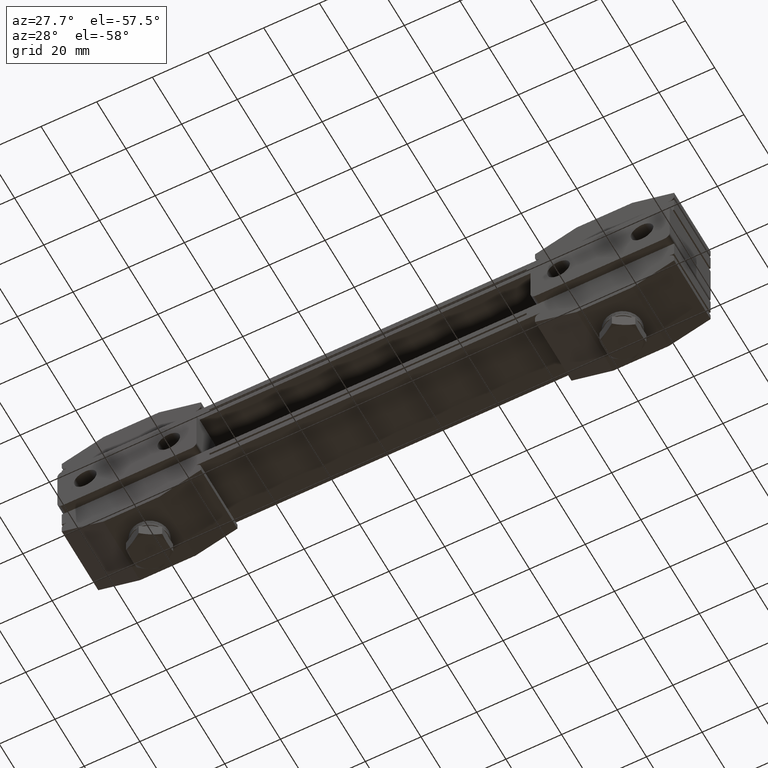
[diagram: clean part render]
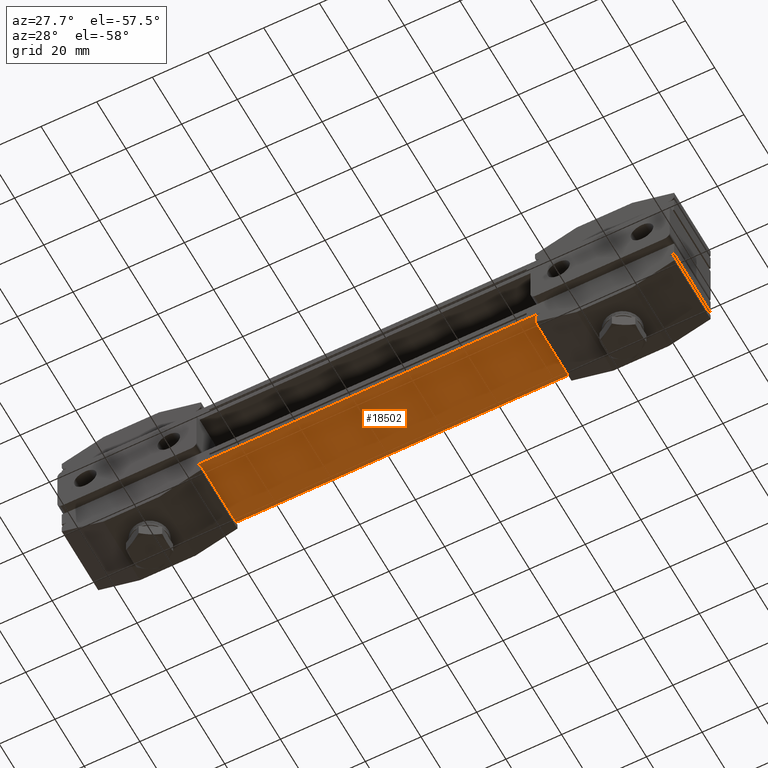
[diagram: same view with one face highlighted and labeled with its STEP entity id]
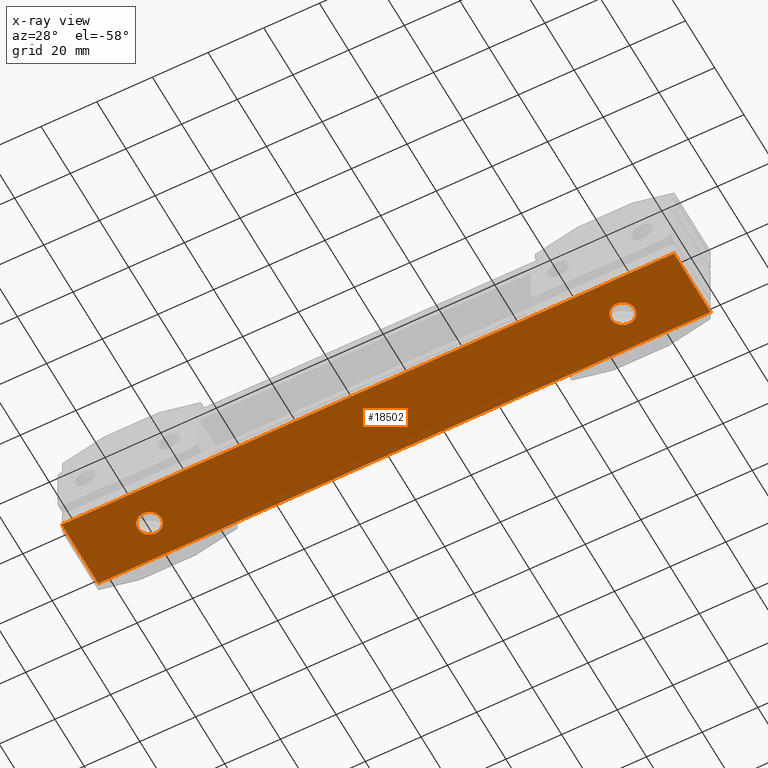
[diagram: x-ray of the same camera — body ghosted, the highlighted face saturated]
A machine part, auxiliary view. The second image highlights one B-rep face of the part: STEP entity #18502.
The next image is the same camera in x-ray: the body ghosted, the highlighted face saturated — about 0% of this face is hidden behind the body in this view.
In plain terms, the highlighted planar face has unit normal (-0, 0, 1).
Its self-contained STEP definition (entity closure, byte-faithful):
#72 = ORIENTED_EDGE ( 'NONE', *, *, #17227, .F. ) ;
#642 = DIRECTION ( 'NONE',  ( 1.000000000000000000, 0.0000000000000000000, 0.0000000000000000000 ) ) ;
#723 = DIRECTION ( 'NONE',  ( -0.0000000000000000000, 0.0000000000000000000, 1.000000000000000000 ) ) ;
#1170 = DIRECTION ( 'NONE',  ( -1.000000000000000000, 0.0000000000000000000, 0.0000000000000000000 ) ) ;
#1500 = EDGE_LOOP ( 'NONE', ( #72, #1949 ) ) ;
#1564 = CARTESIAN_POINT ( 'NONE',  ( 84.99999999999998600, 2.081830801498041300E-014, -3.500000000000000000 ) ) ;
#1949 = ORIENTED_EDGE ( 'NONE', *, *, #18239, .F. ) ;
#2036 = ORIENTED_EDGE ( 'NONE', *, *, #8420, .F. ) ;
#3856 = EDGE_CURVE ( 'NONE', #15508, #6525, #13915, .T. ) ;
#3881 = DIRECTION ( 'NONE',  ( -0.0000000000000000000, -0.0000000000000000000, -1.000000000000000000 ) ) ;
#4141 = CARTESIAN_POINT ( 'NONE',  ( -110.0000000000000000, 12.49999999999999300, -3.500000000000000000 ) ) ;
#4207 = CARTESIAN_POINT ( 'NONE',  ( 89.25000000000000000, 2.133878290461803800E-014, -3.500000000000000000 ) ) ;
#5445 = VERTEX_POINT ( 'NONE', #14012 ) ;
#5651 = VECTOR ( 'NONE', #11967, 1000.000000000000000 ) ;
#6323 = ORIENTED_EDGE ( 'NONE', *, *, #12178, .F. ) ;
#6525 = VERTEX_POINT ( 'NONE', #13177 ) ;
#6662 = DIRECTION ( 'NONE',  ( -1.000000000000000000, 0.0000000000000000000, 0.0000000000000000000 ) ) ;
#7026 = CIRCLE ( 'NONE', #10810, 4.250000000000003600 ) ;
#7117 = LINE ( 'NONE', #22322, #17950 ) ;
#7442 = VECTOR ( 'NONE', #16513, 1000.000000000000000 ) ;
#8420 = EDGE_CURVE ( 'NONE', #6525, #15508, #18715, .T. ) ;
#8682 = VERTEX_POINT ( 'NONE', #10104 ) ;
#8928 = CIRCLE ( 'NONE', #19360, 4.250000000000003600 ) ;
#9317 = PLANE ( 'NONE',  #12877 ) ;
#9680 = CARTESIAN_POINT ( 'NONE',  ( 84.99999999999998600, 2.081830801498041300E-014, -3.500000000000000000 ) ) ;
#9695 = VERTEX_POINT ( 'NONE', #4207 ) ;
#10104 = CARTESIAN_POINT ( 'NONE',  ( -110.0000000000000000, -12.50000000000000700, -3.500000000000000000 ) ) ;
#10549 = VECTOR ( 'NONE', #19897, 1000.000000000000000 ) ;
#10810 = AXIS2_PLACEMENT_3D ( 'NONE', #9680, #21805, #1170 ) ;
#11082 = CARTESIAN_POINT ( 'NONE',  ( -110.0000000000000000, -12.50000000000000700, -3.500000000000000000 ) ) ;
#11264 = ORIENTED_EDGE ( 'NONE', *, *, #21530, .F. ) ;
#11339 = VERTEX_POINT ( 'NONE', #20771 ) ;
#11925 = DIRECTION ( 'NONE',  ( -0.0000000000000000000, -0.0000000000000000000, -1.000000000000000000 ) ) ;
#11967 = DIRECTION ( 'NONE',  ( -0.0000000000000000000, 1.000000000000000000, -0.0000000000000000000 ) ) ;
#11970 = EDGE_CURVE ( 'NONE', #8682, #5445, #13249, .T. ) ;
#12178 = EDGE_CURVE ( 'NONE', #5445, #12803, #14860, .T. ) ;
#12198 = FACE_BOUND ( 'NONE', #1500, .T. ) ;
#12803 = VERTEX_POINT ( 'NONE', #13525 ) ;
#12867 = ORIENTED_EDGE ( 'NONE', *, *, #20593, .F. ) ;
#12877 = AXIS2_PLACEMENT_3D ( 'NONE', #11082, #723, #642 ) ;
#13177 = CARTESIAN_POINT ( 'NONE',  ( -80.74999999999998600, 5.204748896376255600E-016, -3.500000000000000000 ) ) ;
#13249 = LINE ( 'NONE', #14593, #10549 ) ;
#13292 = ORIENTED_EDGE ( 'NONE', *, *, #3856, .F. ) ;
#13456 = DIRECTION ( 'NONE',  ( -1.000000000000000000, 0.0000000000000000000, 0.0000000000000000000 ) ) ;
#13525 = CARTESIAN_POINT ( 'NONE',  ( 110.0000000000000000, 12.49999999999999300, -3.500000000000000000 ) ) ;
#13915 = CIRCLE ( 'NONE', #15331, 4.250000000000003600 ) ;
#14012 = CARTESIAN_POINT ( 'NONE',  ( 110.0000000000000000, -12.50000000000000700, -3.500000000000000000 ) ) ;
#14018 = ORIENTED_EDGE ( 'NONE', *, *, #11970, .F. ) ;
#14578 = EDGE_LOOP ( 'NONE', ( #12867, #11264, #6323, #14018 ) ) ;
#14593 = CARTESIAN_POINT ( 'NONE',  ( -110.0000000000000000, -12.50000000000000700, -3.500000000000000000 ) ) ;
#14625 = AXIS2_PLACEMENT_3D ( 'NONE', #20946, #3881, #21164 ) ;
#14860 = LINE ( 'NONE', #22331, #5651 ) ;
#15100 = DIRECTION ( 'NONE',  ( -0.0000000000000000000, -0.0000000000000000000, -1.000000000000000000 ) ) ;
#15331 = AXIS2_PLACEMENT_3D ( 'NONE', #21932, #15100, #13456 ) ;
#15508 = VERTEX_POINT ( 'NONE', #17781 ) ;
#15701 = FACE_OUTER_BOUND ( 'NONE', #14578, .T. ) ;
#16252 = CARTESIAN_POINT ( 'NONE',  ( -110.0000000000000000, 12.49999999999999300, -3.500000000000000000 ) ) ;
#16513 = DIRECTION ( 'NONE',  ( 0.0000000000000000000, -1.000000000000000000, 0.0000000000000000000 ) ) ;
#16769 = FACE_BOUND ( 'NONE', #17130, .T. ) ;
#17130 = EDGE_LOOP ( 'NONE', ( #13292, #2036 ) ) ;
#17227 = EDGE_CURVE ( 'NONE', #11339, #9695, #7026, .T. ) ;
#17694 = VERTEX_POINT ( 'NONE', #16252 ) ;
#17781 = CARTESIAN_POINT ( 'NONE',  ( -89.25000000000000000, 0.0000000000000000000, -3.500000000000000000 ) ) ;
#17950 = VECTOR ( 'NONE', #18875, 1000.000000000000000 ) ;
#18239 = EDGE_CURVE ( 'NONE', #9695, #11339, #8928, .T. ) ;
#18502 = ADVANCED_FACE ( 'NONE', ( #16769, #12198, #15701 ), #9317, .F. ) ;
#18715 = CIRCLE ( 'NONE', #14625, 4.250000000000003600 ) ;
#18875 = DIRECTION ( 'NONE',  ( -1.000000000000000000, -0.0000000000000000000, -0.0000000000000000000 ) ) ;
#19360 = AXIS2_PLACEMENT_3D ( 'NONE', #1564, #11925, #6662 ) ;
#19897 = DIRECTION ( 'NONE',  ( 1.000000000000000000, 0.0000000000000000000, 0.0000000000000000000 ) ) ;
#20185 = LINE ( 'NONE', #4141, #7442 ) ;
#20593 = EDGE_CURVE ( 'NONE', #17694, #8682, #20185, .T. ) ;
#20771 = CARTESIAN_POINT ( 'NONE',  ( 80.74999999999998600, 2.081830801498041300E-014, -3.500000000000000000 ) ) ;
#20946 = CARTESIAN_POINT ( 'NONE',  ( -84.99999999999998600, 0.0000000000000000000, -3.500000000000000000 ) ) ;
#21164 = DIRECTION ( 'NONE',  ( -1.000000000000000000, 0.0000000000000000000, 0.0000000000000000000 ) ) ;
#21530 = EDGE_CURVE ( 'NONE', #12803, #17694, #7117, .T. ) ;
#21805 = DIRECTION ( 'NONE',  ( -0.0000000000000000000, -0.0000000000000000000, -1.000000000000000000 ) ) ;
#21932 = CARTESIAN_POINT ( 'NONE',  ( -84.99999999999998600, 0.0000000000000000000, -3.500000000000000000 ) ) ;
#22322 = CARTESIAN_POINT ( 'NONE',  ( -110.0000000000000000, 12.49999999999999300, -3.500000000000000000 ) ) ;
#22331 = CARTESIAN_POINT ( 'NONE',  ( 110.0000000000000000, 12.49999999999999300, -3.500000000000000000 ) ) ;